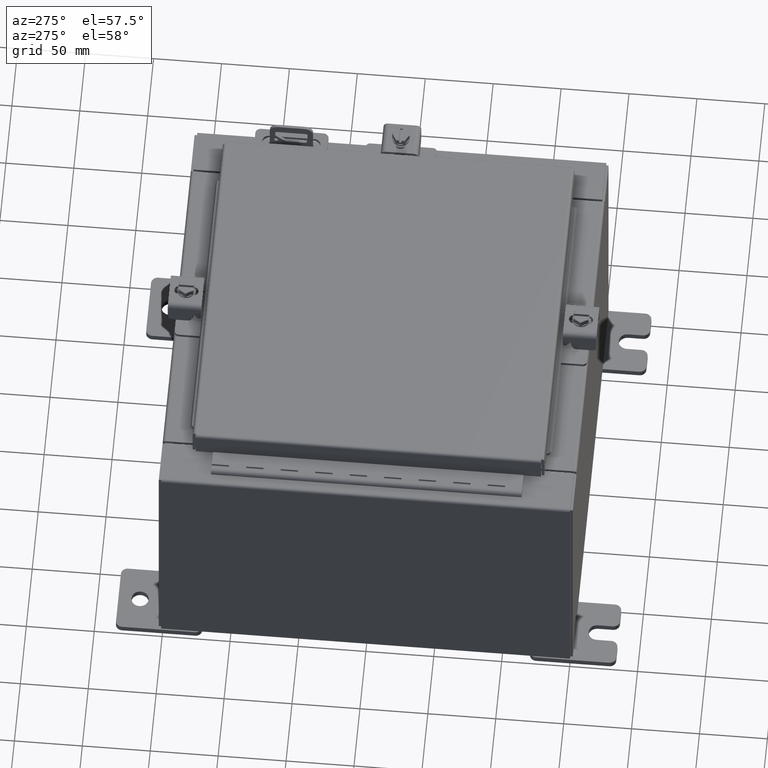
[diagram: clean part render]
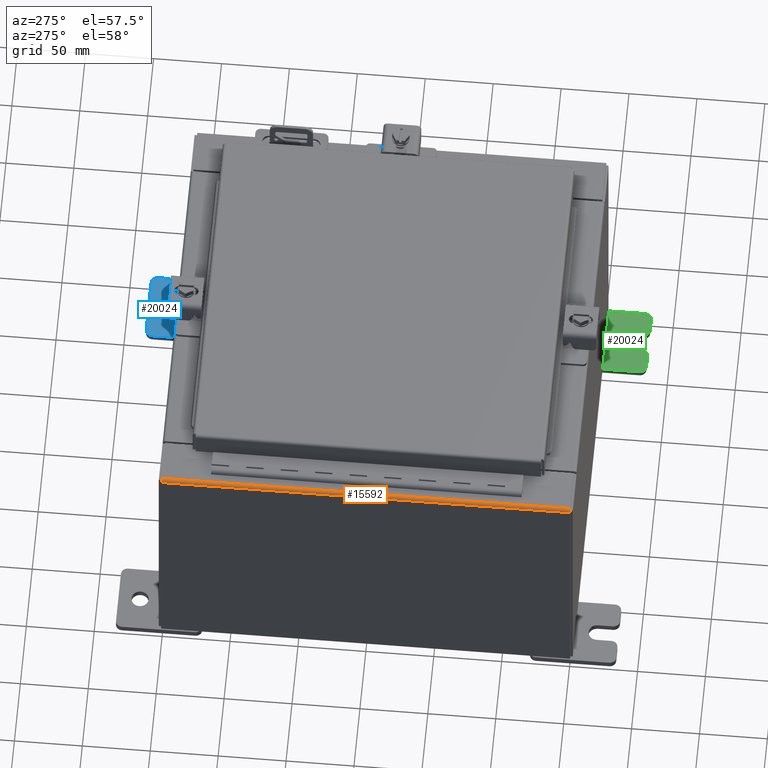
[diagram: same view with three faces highlighted in distinct colors, each labeled with its STEP entity id]
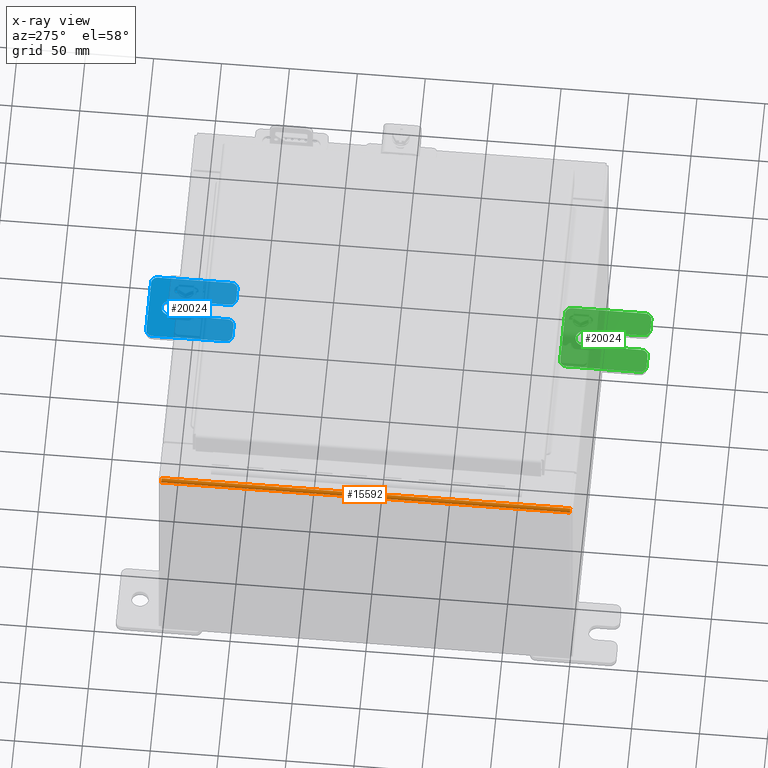
[diagram: x-ray of the same camera — body ghosted, the three highlighted faces saturated]
A machine part, auxiliary view with three faces highlighted in distinct colors.
The next image is the same camera in x-ray (body ghosted, the three faces saturated) — at least one of them is partly hidden behind the body in this view.
Their STEP definitions:

[orange] entity #15592 — the highlighted cylindrical surface (edge-blend (fillet) strip) has radius 2.2276 mm, axis along (-0, -1, -0).
#69 = AXIS2_PLACEMENT_3D ( 'NONE', #8553, #21232, #10394 ) ;
#216 = DIRECTION ( 'NONE',  ( 0.0000000000000000000, 1.000000000000000000, 0.0000000000000000000 ) ) ;
#628 = LINE ( 'NONE', #20054, #13836 ) ;
#974 = CARTESIAN_POINT ( 'NONE',  ( -5.912300000000026800, -5.925299999999995600, 7.925300000000000000 ) ) ;
#1268 = EDGE_CURVE ( 'NONE', #5473, #1797, #628, .T. ) ;
#1797 = VERTEX_POINT ( 'NONE', #10843 ) ;
#2238 = ORIENTED_EDGE ( 'NONE', *, *, #6460, .F. ) ;
#2989 = CIRCLE ( 'NONE', #69, 0.08770000000000026400 ) ;
#3129 = CARTESIAN_POINT ( 'NONE',  ( -5.912300000000026800, 5.925299999999999100, 7.925300000000000000 ) ) ;
#3754 = CARTESIAN_POINT ( 'NONE',  ( -5.912300000000026800, -5.925299999999999100, 7.837599999999999200 ) ) ;
#4167 = FACE_OUTER_BOUND ( 'NONE', #5408, .T. ) ;
#5408 = EDGE_LOOP ( 'NONE', ( #11499, #10236, #21797, #2238 ) ) ;
#5473 = VERTEX_POINT ( 'NONE', #22012 ) ;
#6460 = EDGE_CURVE ( 'NONE', #1797, #10563, #2989, .T. ) ;
#8553 = CARTESIAN_POINT ( 'NONE',  ( -5.912300000000026800, 5.925299999999999100, 7.837599999999999200 ) ) ;
#8840 = CARTESIAN_POINT ( 'NONE',  ( -5.912300000000026800, -5.925299999999995600, 7.837599999999999200 ) ) ;
#10236 = ORIENTED_EDGE ( 'NONE', *, *, #11080, .F. ) ;
#10394 = DIRECTION ( 'NONE',  ( 0.0000000000000000000, 0.0000000000000000000, -1.000000000000000000 ) ) ;
#10563 = VERTEX_POINT ( 'NONE', #3129 ) ;
#10671 = DIRECTION ( 'NONE',  ( 0.0000000000000000000, 0.0000000000000000000, -1.000000000000000000 ) ) ;
#10843 = CARTESIAN_POINT ( 'NONE',  ( -6.000000000000026600, 5.925299999999999100, 7.837599999999999200 ) ) ;
#11020 = VECTOR ( 'NONE', #21230, 39.37007874015748100 ) ;
#11080 = EDGE_CURVE ( 'NONE', #18342, #5473, #19603, .T. ) ;
#11499 = ORIENTED_EDGE ( 'NONE', *, *, #1268, .F. ) ;
#12608 = CYLINDRICAL_SURFACE ( 'NONE', #15804, 0.08770000000000026400 ) ;
#13836 = VECTOR ( 'NONE', #216, 39.37007874015748100 ) ;
#14578 = DIRECTION ( 'NONE',  ( -1.245996804407870000E-014, 0.0000000000000000000, 1.000000000000000000 ) ) ;
#15592 = ADVANCED_FACE ( 'NONE', ( #4167 ), #12608, .T. ) ;
#15804 = AXIS2_PLACEMENT_3D ( 'NONE', #3754, #16407, #14578 ) ;
#16407 = DIRECTION ( 'NONE',  ( -0.0000000000000000000, -1.000000000000000000, -0.0000000000000000000 ) ) ;
#17206 = EDGE_CURVE ( 'NONE', #18342, #10563, #20637, .T. ) ;
#17583 = CARTESIAN_POINT ( 'NONE',  ( -5.912300000000026800, 5.925299999999999100, 7.925300000000000000 ) ) ;
#18342 = VERTEX_POINT ( 'NONE', #974 ) ;
#19603 = CIRCLE ( 'NONE', #19735, 0.08770000000000026400 ) ;
#19735 = AXIS2_PLACEMENT_3D ( 'NONE', #8840, #21507, #10671 ) ;
#20054 = CARTESIAN_POINT ( 'NONE',  ( -6.000000000000026600, -5.925299999999999100, 7.837599999999999200 ) ) ;
#20637 = LINE ( 'NONE', #17583, #11020 ) ;
#21230 = DIRECTION ( 'NONE',  ( -0.0000000000000000000, 1.000000000000000000, -0.0000000000000000000 ) ) ;
#21232 = DIRECTION ( 'NONE',  ( 0.0000000000000000000, 1.000000000000000000, 0.0000000000000000000 ) ) ;
#21507 = DIRECTION ( 'NONE',  ( -0.0000000000000000000, -1.000000000000000000, -0.0000000000000000000 ) ) ;
#21797 = ORIENTED_EDGE ( 'NONE', *, *, #17206, .T. ) ;
#22012 = CARTESIAN_POINT ( 'NONE',  ( -6.000000000000026600, -5.925299999999995600, 7.837599999999999200 ) ) ;

[blue] entity #20024 — the highlighted planar face has unit normal (0, 0, 1).
#12 = EDGE_LOOP ( 'NONE', ( #15876, #14520 ) ) ;
#305 = CARTESIAN_POINT ( 'NONE',  ( 0.0000000000000000000, 1.059999999999996500, 0.9999999999999953400 ) ) ;
#368 = DIRECTION ( 'NONE',  ( 0.0000000000000000000, 0.0000000000000000000, -1.000000000000000000 ) ) ;
#656 = DIRECTION ( 'NONE',  ( 1.000000000000000000, 0.0000000000000000000, -0.0000000000000000000 ) ) ;
#1143 = CARTESIAN_POINT ( 'NONE',  ( 0.0000000000000000000, -1.250000000000002200, 0.9999999999999992200 ) ) ;
#1504 = AXIS2_PLACEMENT_3D ( 'NONE', #22040, #11196, #368 ) ;
#1907 = DIRECTION ( 'NONE',  ( -1.000000000000000000, 6.523827964459549700E-016, 5.163192708025532000E-017 ) ) ;
#2063 = DIRECTION ( 'NONE',  ( 0.0000000000000000000, -1.639108796198553600E-015, -1.000000000000000000 ) ) ;
#2119 = FACE_OUTER_BOUND ( 'NONE', #22215, .T. ) ;
#2280 = CARTESIAN_POINT ( 'NONE',  ( 1.928684683526972300E-016, -1.060000000000002100, 0.2500000000000005000 ) ) ;
#2347 = AXIS2_PLACEMENT_3D ( 'NONE', #13286, #2495, #15117 ) ;
#2495 = DIRECTION ( 'NONE',  ( 1.000000000000000000, -0.0000000000000000000, -5.163192708025532000E-017 ) ) ;
#2783 = AXIS2_PLACEMENT_3D ( 'NONE', #4061, #16705, #5897 ) ;
#2816 = EDGE_CURVE ( 'NONE', #12637, #7924, #9660, .T. ) ;
#3199 = LINE ( 'NONE', #8523, #21895 ) ;
#3276 = VERTEX_POINT ( 'NONE', #5147 ) ;
#3283 = AXIS2_PLACEMENT_3D ( 'NONE', #19241, #8398, #21064 ) ;
#3417 = ORIENTED_EDGE ( 'NONE', *, *, #8462, .T. ) ;
#3500 = ORIENTED_EDGE ( 'NONE', *, *, #8357, .T. ) ;
#3538 = VECTOR ( 'NONE', #11509, 39.37007874015748100 ) ;
#3866 = EDGE_CURVE ( 'NONE', #21103, #7865, #4253, .T. ) ;
#3917 = CIRCLE ( 'NONE', #3283, 0.1900000000000011100 ) ;
#4019 = AXIS2_PLACEMENT_3D ( 'NONE', #19695, #8852, #21522 ) ;
#4061 = CARTESIAN_POINT ( 'NONE',  ( 4.039428427013647300E-016, 0.6249999999999992200, -9.783840404509077400E-018 ) ) ;
#4225 = PLANE ( 'NONE',  #14187 ) ;
#4253 = CIRCLE ( 'NONE', #22323, 0.1900000000000011100 ) ;
#4599 = EDGE_CURVE ( 'NONE', #6870, #3276, #19486, .T. ) ;
#4742 = ORIENTED_EDGE ( 'NONE', *, *, #10960, .T. ) ;
#5147 = CARTESIAN_POINT ( 'NONE',  ( 4.168508244714285900E-016, 0.6249999999999992200, 0.2499999999999999200 ) ) ;
#5223 = EDGE_CURVE ( 'NONE', #22530, #20674, #7591, .T. ) ;
#5267 = CIRCLE ( 'NONE', #4019, 0.1900000000000011400 ) ;
#5510 = VECTOR ( 'NONE', #15352, 39.37007874015748100 ) ;
#5671 = CARTESIAN_POINT ( 'NONE',  ( 1.928684683526964400E-016, -1.060000000000003400, -0.2499999999999994400 ) ) ;
#5897 = DIRECTION ( 'NONE',  ( -5.163192708025533800E-017, 0.0000000000000000000, -1.000000000000000000 ) ) ;
#6054 = DIRECTION ( 'NONE',  ( 1.000000000000000000, 0.0000000000000000000, -0.0000000000000000000 ) ) ;
#6177 = ORIENTED_EDGE ( 'NONE', *, *, #18038, .T. ) ;
#6870 = VERTEX_POINT ( 'NONE', #16285 ) ;
#6990 = DIRECTION ( 'NONE',  ( 0.0000000000000000000, 1.639108796198553600E-015, 1.000000000000000000 ) ) ;
#7319 = DIRECTION ( 'NONE',  ( 1.000000000000000000, 0.0000000000000000000, -0.0000000000000000000 ) ) ;
#7432 = VERTEX_POINT ( 'NONE', #23359 ) ;
#7591 = LINE ( 'NONE', #19615, #21449 ) ;
#7737 = EDGE_CURVE ( 'NONE', #14711, #17662, #9499, .T. ) ;
#7865 = VERTEX_POINT ( 'NONE', #17121 ) ;
#7924 = VERTEX_POINT ( 'NONE', #10144 ) ;
#7959 = EDGE_CURVE ( 'NONE', #16753, #7432, #18255, .T. ) ;
#8021 = VERTEX_POINT ( 'NONE', #21221 ) ;
#8037 = CIRCLE ( 'NONE', #22698, 0.1900000000000011100 ) ;
#8169 = CARTESIAN_POINT ( 'NONE',  ( 0.0000000000000000000, -1.250000000000005600, -1.000000000000006200 ) ) ;
#8357 = EDGE_CURVE ( 'NONE', #7924, #8021, #10875, .T. ) ;
#8398 = DIRECTION ( 'NONE',  ( 1.000000000000000000, 0.0000000000000000000, -0.0000000000000000000 ) ) ;
#8459 = CARTESIAN_POINT ( 'NONE',  ( 0.0000000000000000000, 1.059999999999993600, -0.8100000000000089400 ) ) ;
#8462 = EDGE_CURVE ( 'NONE', #8021, #22530, #8037, .T. ) ;
#8523 = CARTESIAN_POINT ( 'NONE',  ( 4.780733988912460100E-016, -0.6249999999999993300, -0.2499999999999993900 ) ) ;
#8852 = DIRECTION ( 'NONE',  ( 1.000000000000000000, 0.0000000000000000000, -0.0000000000000000000 ) ) ;
#9499 = LINE ( 'NONE', #20541, #3538 ) ;
#9560 = VECTOR ( 'NONE', #2063, 39.37007874015748100 ) ;
#9660 = CIRCLE ( 'NONE', #1504, 0.1900000000000011100 ) ;
#9910 = ORIENTED_EDGE ( 'NONE', *, *, #3866, .T. ) ;
#10144 = CARTESIAN_POINT ( 'NONE',  ( 0.0000000000000000000, -1.060000000000004500, -1.000000000000006400 ) ) ;
#10285 = DIRECTION ( 'NONE',  ( 0.0000000000000000000, 0.0000000000000000000, -1.000000000000000000 ) ) ;
#10376 = ORIENTED_EDGE ( 'NONE', *, *, #11054, .T. ) ;
#10455 = CIRCLE ( 'NONE', #2347, 0.2499999999999999200 ) ;
#10875 = LINE ( 'NONE', #8169, #5510 ) ;
#10960 = EDGE_CURVE ( 'NONE', #12478, #21103, #3199, .T. ) ;
#10982 = CARTESIAN_POINT ( 'NONE',  ( 0.0000000000000000000, -1.250000000000002400, 0.8099999999999980500 ) ) ;
#11054 = EDGE_CURVE ( 'NONE', #16839, #11953, #20187, .T. ) ;
#11082 = CARTESIAN_POINT ( 'NONE',  ( 0.0000000000000000000, -1.250000000000002200, 0.9999999999999992200 ) ) ;
#11196 = DIRECTION ( 'NONE',  ( 1.000000000000000000, 0.0000000000000000000, -0.0000000000000000000 ) ) ;
#11207 = CARTESIAN_POINT ( 'NONE',  ( 0.0000000000000000000, -1.060000000000001200, 0.9999999999999988900 ) ) ;
#11509 = DIRECTION ( 'NONE',  ( 6.556435184794182400E-016, 1.000000000000000000, 0.0000000000000000000 ) ) ;
#11685 = ORIENTED_EDGE ( 'NONE', *, *, #5223, .T. ) ;
#11953 = VERTEX_POINT ( 'NONE', #11207 ) ;
#12023 = DIRECTION ( 'NONE',  ( 0.0000000000000000000, -1.639108796198553600E-015, -1.000000000000000000 ) ) ;
#12313 = DIRECTION ( 'NONE',  ( 0.0000000000000000000, -1.000000000000000000, 1.639108796198558100E-015 ) ) ;
#12478 = VERTEX_POINT ( 'NONE', #20882 ) ;
#12637 = VERTEX_POINT ( 'NONE', #23140 ) ;
#12719 = CARTESIAN_POINT ( 'NONE',  ( 4.780733988912460100E-016, -0.6249999999999993300, 5.858939755051854500E-017 ) ) ;
#12856 = ORIENTED_EDGE ( 'NONE', *, *, #21696, .T. ) ;
#13275 = DIRECTION ( 'NONE',  ( -0.0000000000000000000, 0.0000000000000000000, -1.000000000000000000 ) ) ;
#13286 = CARTESIAN_POINT ( 'NONE',  ( 4.039428427013647300E-016, 0.6249999999999992200, -9.783840404509077400E-018 ) ) ;
#13593 = AXIS2_PLACEMENT_3D ( 'NONE', #16883, #6054, #18698 ) ;
#14187 = AXIS2_PLACEMENT_3D ( 'NONE', #20513, #656, #13275 ) ;
#14520 = ORIENTED_EDGE ( 'NONE', *, *, #23089, .F. ) ;
#14546 = DIRECTION ( 'NONE',  ( -6.523827964459551700E-016, -1.000000000000000000, 0.0000000000000000000 ) ) ;
#14711 = VERTEX_POINT ( 'NONE', #2280 ) ;
#14853 = CARTESIAN_POINT ( 'NONE',  ( 0.0000000000000000000, 1.249999999999997300, 0.8099999999999935000 ) ) ;
#14927 = EDGE_CURVE ( 'NONE', #11953, #16753, #3917, .T. ) ;
#15117 = DIRECTION ( 'NONE',  ( -5.163192708025533800E-017, 0.0000000000000000000, -1.000000000000000000 ) ) ;
#15138 = AXIS2_PLACEMENT_3D ( 'NONE', #12719, #1907, #14546 ) ;
#15352 = DIRECTION ( 'NONE',  ( 0.0000000000000000000, 1.000000000000000000, -1.639108796198558100E-015 ) ) ;
#15356 = VECTOR ( 'NONE', #12313, 39.37007874015748100 ) ;
#15623 = ORIENTED_EDGE ( 'NONE', *, *, #14927, .T. ) ;
#15876 = ORIENTED_EDGE ( 'NONE', *, *, #4599, .F. ) ;
#16045 = EDGE_CURVE ( 'NONE', #7432, #14711, #5267, .T. ) ;
#16285 = CARTESIAN_POINT ( 'NONE',  ( 3.910348609313009100E-016, 0.6249999999999992200, -0.2499999999999999200 ) ) ;
#16300 = ORIENTED_EDGE ( 'NONE', *, *, #7959, .T. ) ;
#16336 = ORIENTED_EDGE ( 'NONE', *, *, #21229, .T. ) ;
#16705 = DIRECTION ( 'NONE',  ( 1.000000000000000000, -0.0000000000000000000, -5.163192708025532000E-017 ) ) ;
#16753 = VERTEX_POINT ( 'NONE', #10982 ) ;
#16839 = VERTEX_POINT ( 'NONE', #305 ) ;
#16883 = CARTESIAN_POINT ( 'NONE',  ( 0.0000000000000000000, 1.059999999999996300, 0.8099999999999938400 ) ) ;
#17121 = CARTESIAN_POINT ( 'NONE',  ( 0.0000000000000000000, -1.250000000000004700, -0.4400000000000002200 ) ) ;
#17328 = CIRCLE ( 'NONE', #13593, 0.1900000000000011100 ) ;
#17662 = VERTEX_POINT ( 'NONE', #20897 ) ;
#17787 = CARTESIAN_POINT ( 'NONE',  ( 0.0000000000000000000, 1.249999999999997600, 0.9999999999999951200 ) ) ;
#17873 = CIRCLE ( 'NONE', #15138, 0.2499999999999999200 ) ;
#18038 = EDGE_CURVE ( 'NONE', #7865, #12637, #23401, .T. ) ;
#18130 = CARTESIAN_POINT ( 'NONE',  ( 0.0000000000000000000, -1.060000000000003400, -0.4400000000000005000 ) ) ;
#18255 = LINE ( 'NONE', #1143, #22490 ) ;
#18698 = DIRECTION ( 'NONE',  ( 0.0000000000000000000, 0.0000000000000000000, -1.000000000000000000 ) ) ;
#19241 = CARTESIAN_POINT ( 'NONE',  ( 0.0000000000000000000, -1.060000000000001600, 0.8099999999999978300 ) ) ;
#19366 = DIRECTION ( 'NONE',  ( -6.556435184794182400E-016, -1.000000000000000000, -1.639108796198545600E-016 ) ) ;
#19486 = CIRCLE ( 'NONE', #2783, 0.2499999999999999200 ) ;
#19615 = CARTESIAN_POINT ( 'NONE',  ( 0.0000000000000000000, 1.249999999999994200, -1.000000000000010400 ) ) ;
#19695 = CARTESIAN_POINT ( 'NONE',  ( 0.0000000000000000000, -1.060000000000002100, 0.4400000000000016700 ) ) ;
#19950 = DIRECTION ( 'NONE',  ( 0.0000000000000000000, 0.0000000000000000000, -1.000000000000000000 ) ) ;
#20024 = ADVANCED_FACE ( 'NONE', ( #21353, #2119 ), #4225, .T. ) ;
#20187 = LINE ( 'NONE', #17787, #15356 ) ;
#20513 = CARTESIAN_POINT ( 'NONE',  ( 0.0000000000000000000, 0.0000000000000000000, 0.0000000000000000000 ) ) ;
#20530 = ORIENTED_EDGE ( 'NONE', *, *, #16045, .T. ) ;
#20541 = CARTESIAN_POINT ( 'NONE',  ( 6.829619984160658000E-017, -1.250000000000003800, 0.2500000000000005000 ) ) ;
#20674 = VERTEX_POINT ( 'NONE', #14853 ) ;
#20776 = CARTESIAN_POINT ( 'NONE',  ( 0.0000000000000000000, 1.249999999999994700, -0.8100000000000092700 ) ) ;
#20882 = CARTESIAN_POINT ( 'NONE',  ( 4.780733988912460100E-016, -0.6249999999999993300, -0.2499999999999998600 ) ) ;
#20897 = CARTESIAN_POINT ( 'NONE',  ( 0.0000000000000000000, -0.6249999999999992200, 0.2500000000000005000 ) ) ;
#21028 = ORIENTED_EDGE ( 'NONE', *, *, #7737, .T. ) ;
#21064 = DIRECTION ( 'NONE',  ( 0.0000000000000000000, 0.0000000000000000000, -1.000000000000000000 ) ) ;
#21103 = VERTEX_POINT ( 'NONE', #5671 ) ;
#21134 = DIRECTION ( 'NONE',  ( 1.000000000000000000, 0.0000000000000000000, -0.0000000000000000000 ) ) ;
#21221 = CARTESIAN_POINT ( 'NONE',  ( 0.0000000000000000000, 1.059999999999993400, -1.000000000000010000 ) ) ;
#21229 = EDGE_CURVE ( 'NONE', #20674, #16839, #17328, .T. ) ;
#21353 = FACE_BOUND ( 'NONE', #12, .T. ) ;
#21449 = VECTOR ( 'NONE', #6990, 39.37007874015748100 ) ;
#21522 = DIRECTION ( 'NONE',  ( 0.0000000000000000000, 0.0000000000000000000, -1.000000000000000000 ) ) ;
#21696 = EDGE_CURVE ( 'NONE', #17662, #12478, #17873, .T. ) ;
#21786 = ORIENTED_EDGE ( 'NONE', *, *, #2816, .T. ) ;
#21895 = VECTOR ( 'NONE', #19366, 39.37007874015748100 ) ;
#22040 = CARTESIAN_POINT ( 'NONE',  ( 0.0000000000000000000, -1.060000000000004100, -0.8100000000000050500 ) ) ;
#22215 = EDGE_LOOP ( 'NONE', ( #10376, #15623, #16300, #20530, #21028, #12856, #4742, #9910, #6177, #21786, #3500, #3417, #11685, #16336 ) ) ;
#22323 = AXIS2_PLACEMENT_3D ( 'NONE', #18130, #7319, #19950 ) ;
#22490 = VECTOR ( 'NONE', #12023, 39.37007874015748100 ) ;
#22530 = VERTEX_POINT ( 'NONE', #20776 ) ;
#22698 = AXIS2_PLACEMENT_3D ( 'NONE', #8459, #21134, #10285 ) ;
#23089 = EDGE_CURVE ( 'NONE', #3276, #6870, #10455, .T. ) ;
#23140 = CARTESIAN_POINT ( 'NONE',  ( 0.0000000000000000000, -1.250000000000005300, -0.8100000000000047200 ) ) ;
#23359 = CARTESIAN_POINT ( 'NONE',  ( 0.0000000000000000000, -1.250000000000003100, 0.4400000000000020000 ) ) ;
#23401 = LINE ( 'NONE', #11082, #9560 ) ;

[green] entity #20024 — the highlighted planar face has unit normal (0, 0, 1).
#12 = EDGE_LOOP ( 'NONE', ( #15876, #14520 ) ) ;
#305 = CARTESIAN_POINT ( 'NONE',  ( 0.0000000000000000000, 1.059999999999996500, 0.9999999999999953400 ) ) ;
#368 = DIRECTION ( 'NONE',  ( 0.0000000000000000000, 0.0000000000000000000, -1.000000000000000000 ) ) ;
#656 = DIRECTION ( 'NONE',  ( 1.000000000000000000, 0.0000000000000000000, -0.0000000000000000000 ) ) ;
#1143 = CARTESIAN_POINT ( 'NONE',  ( 0.0000000000000000000, -1.250000000000002200, 0.9999999999999992200 ) ) ;
#1504 = AXIS2_PLACEMENT_3D ( 'NONE', #22040, #11196, #368 ) ;
#1907 = DIRECTION ( 'NONE',  ( -1.000000000000000000, 6.523827964459549700E-016, 5.163192708025532000E-017 ) ) ;
#2063 = DIRECTION ( 'NONE',  ( 0.0000000000000000000, -1.639108796198553600E-015, -1.000000000000000000 ) ) ;
#2119 = FACE_OUTER_BOUND ( 'NONE', #22215, .T. ) ;
#2280 = CARTESIAN_POINT ( 'NONE',  ( 1.928684683526972300E-016, -1.060000000000002100, 0.2500000000000005000 ) ) ;
#2347 = AXIS2_PLACEMENT_3D ( 'NONE', #13286, #2495, #15117 ) ;
#2495 = DIRECTION ( 'NONE',  ( 1.000000000000000000, -0.0000000000000000000, -5.163192708025532000E-017 ) ) ;
#2783 = AXIS2_PLACEMENT_3D ( 'NONE', #4061, #16705, #5897 ) ;
#2816 = EDGE_CURVE ( 'NONE', #12637, #7924, #9660, .T. ) ;
#3199 = LINE ( 'NONE', #8523, #21895 ) ;
#3276 = VERTEX_POINT ( 'NONE', #5147 ) ;
#3283 = AXIS2_PLACEMENT_3D ( 'NONE', #19241, #8398, #21064 ) ;
#3417 = ORIENTED_EDGE ( 'NONE', *, *, #8462, .T. ) ;
#3500 = ORIENTED_EDGE ( 'NONE', *, *, #8357, .T. ) ;
#3538 = VECTOR ( 'NONE', #11509, 39.37007874015748100 ) ;
#3866 = EDGE_CURVE ( 'NONE', #21103, #7865, #4253, .T. ) ;
#3917 = CIRCLE ( 'NONE', #3283, 0.1900000000000011100 ) ;
#4019 = AXIS2_PLACEMENT_3D ( 'NONE', #19695, #8852, #21522 ) ;
#4061 = CARTESIAN_POINT ( 'NONE',  ( 4.039428427013647300E-016, 0.6249999999999992200, -9.783840404509077400E-018 ) ) ;
#4225 = PLANE ( 'NONE',  #14187 ) ;
#4253 = CIRCLE ( 'NONE', #22323, 0.1900000000000011100 ) ;
#4599 = EDGE_CURVE ( 'NONE', #6870, #3276, #19486, .T. ) ;
#4742 = ORIENTED_EDGE ( 'NONE', *, *, #10960, .T. ) ;
#5147 = CARTESIAN_POINT ( 'NONE',  ( 4.168508244714285900E-016, 0.6249999999999992200, 0.2499999999999999200 ) ) ;
#5223 = EDGE_CURVE ( 'NONE', #22530, #20674, #7591, .T. ) ;
#5267 = CIRCLE ( 'NONE', #4019, 0.1900000000000011400 ) ;
#5510 = VECTOR ( 'NONE', #15352, 39.37007874015748100 ) ;
#5671 = CARTESIAN_POINT ( 'NONE',  ( 1.928684683526964400E-016, -1.060000000000003400, -0.2499999999999994400 ) ) ;
#5897 = DIRECTION ( 'NONE',  ( -5.163192708025533800E-017, 0.0000000000000000000, -1.000000000000000000 ) ) ;
#6054 = DIRECTION ( 'NONE',  ( 1.000000000000000000, 0.0000000000000000000, -0.0000000000000000000 ) ) ;
#6177 = ORIENTED_EDGE ( 'NONE', *, *, #18038, .T. ) ;
#6870 = VERTEX_POINT ( 'NONE', #16285 ) ;
#6990 = DIRECTION ( 'NONE',  ( 0.0000000000000000000, 1.639108796198553600E-015, 1.000000000000000000 ) ) ;
#7319 = DIRECTION ( 'NONE',  ( 1.000000000000000000, 0.0000000000000000000, -0.0000000000000000000 ) ) ;
#7432 = VERTEX_POINT ( 'NONE', #23359 ) ;
#7591 = LINE ( 'NONE', #19615, #21449 ) ;
#7737 = EDGE_CURVE ( 'NONE', #14711, #17662, #9499, .T. ) ;
#7865 = VERTEX_POINT ( 'NONE', #17121 ) ;
#7924 = VERTEX_POINT ( 'NONE', #10144 ) ;
#7959 = EDGE_CURVE ( 'NONE', #16753, #7432, #18255, .T. ) ;
#8021 = VERTEX_POINT ( 'NONE', #21221 ) ;
#8037 = CIRCLE ( 'NONE', #22698, 0.1900000000000011100 ) ;
#8169 = CARTESIAN_POINT ( 'NONE',  ( 0.0000000000000000000, -1.250000000000005600, -1.000000000000006200 ) ) ;
#8357 = EDGE_CURVE ( 'NONE', #7924, #8021, #10875, .T. ) ;
#8398 = DIRECTION ( 'NONE',  ( 1.000000000000000000, 0.0000000000000000000, -0.0000000000000000000 ) ) ;
#8459 = CARTESIAN_POINT ( 'NONE',  ( 0.0000000000000000000, 1.059999999999993600, -0.8100000000000089400 ) ) ;
#8462 = EDGE_CURVE ( 'NONE', #8021, #22530, #8037, .T. ) ;
#8523 = CARTESIAN_POINT ( 'NONE',  ( 4.780733988912460100E-016, -0.6249999999999993300, -0.2499999999999993900 ) ) ;
#8852 = DIRECTION ( 'NONE',  ( 1.000000000000000000, 0.0000000000000000000, -0.0000000000000000000 ) ) ;
#9499 = LINE ( 'NONE', #20541, #3538 ) ;
#9560 = VECTOR ( 'NONE', #2063, 39.37007874015748100 ) ;
#9660 = CIRCLE ( 'NONE', #1504, 0.1900000000000011100 ) ;
#9910 = ORIENTED_EDGE ( 'NONE', *, *, #3866, .T. ) ;
#10144 = CARTESIAN_POINT ( 'NONE',  ( 0.0000000000000000000, -1.060000000000004500, -1.000000000000006400 ) ) ;
#10285 = DIRECTION ( 'NONE',  ( 0.0000000000000000000, 0.0000000000000000000, -1.000000000000000000 ) ) ;
#10376 = ORIENTED_EDGE ( 'NONE', *, *, #11054, .T. ) ;
#10455 = CIRCLE ( 'NONE', #2347, 0.2499999999999999200 ) ;
#10875 = LINE ( 'NONE', #8169, #5510 ) ;
#10960 = EDGE_CURVE ( 'NONE', #12478, #21103, #3199, .T. ) ;
#10982 = CARTESIAN_POINT ( 'NONE',  ( 0.0000000000000000000, -1.250000000000002400, 0.8099999999999980500 ) ) ;
#11054 = EDGE_CURVE ( 'NONE', #16839, #11953, #20187, .T. ) ;
#11082 = CARTESIAN_POINT ( 'NONE',  ( 0.0000000000000000000, -1.250000000000002200, 0.9999999999999992200 ) ) ;
#11196 = DIRECTION ( 'NONE',  ( 1.000000000000000000, 0.0000000000000000000, -0.0000000000000000000 ) ) ;
#11207 = CARTESIAN_POINT ( 'NONE',  ( 0.0000000000000000000, -1.060000000000001200, 0.9999999999999988900 ) ) ;
#11509 = DIRECTION ( 'NONE',  ( 6.556435184794182400E-016, 1.000000000000000000, 0.0000000000000000000 ) ) ;
#11685 = ORIENTED_EDGE ( 'NONE', *, *, #5223, .T. ) ;
#11953 = VERTEX_POINT ( 'NONE', #11207 ) ;
#12023 = DIRECTION ( 'NONE',  ( 0.0000000000000000000, -1.639108796198553600E-015, -1.000000000000000000 ) ) ;
#12313 = DIRECTION ( 'NONE',  ( 0.0000000000000000000, -1.000000000000000000, 1.639108796198558100E-015 ) ) ;
#12478 = VERTEX_POINT ( 'NONE', #20882 ) ;
#12637 = VERTEX_POINT ( 'NONE', #23140 ) ;
#12719 = CARTESIAN_POINT ( 'NONE',  ( 4.780733988912460100E-016, -0.6249999999999993300, 5.858939755051854500E-017 ) ) ;
#12856 = ORIENTED_EDGE ( 'NONE', *, *, #21696, .T. ) ;
#13275 = DIRECTION ( 'NONE',  ( -0.0000000000000000000, 0.0000000000000000000, -1.000000000000000000 ) ) ;
#13286 = CARTESIAN_POINT ( 'NONE',  ( 4.039428427013647300E-016, 0.6249999999999992200, -9.783840404509077400E-018 ) ) ;
#13593 = AXIS2_PLACEMENT_3D ( 'NONE', #16883, #6054, #18698 ) ;
#14187 = AXIS2_PLACEMENT_3D ( 'NONE', #20513, #656, #13275 ) ;
#14520 = ORIENTED_EDGE ( 'NONE', *, *, #23089, .F. ) ;
#14546 = DIRECTION ( 'NONE',  ( -6.523827964459551700E-016, -1.000000000000000000, 0.0000000000000000000 ) ) ;
#14711 = VERTEX_POINT ( 'NONE', #2280 ) ;
#14853 = CARTESIAN_POINT ( 'NONE',  ( 0.0000000000000000000, 1.249999999999997300, 0.8099999999999935000 ) ) ;
#14927 = EDGE_CURVE ( 'NONE', #11953, #16753, #3917, .T. ) ;
#15117 = DIRECTION ( 'NONE',  ( -5.163192708025533800E-017, 0.0000000000000000000, -1.000000000000000000 ) ) ;
#15138 = AXIS2_PLACEMENT_3D ( 'NONE', #12719, #1907, #14546 ) ;
#15352 = DIRECTION ( 'NONE',  ( 0.0000000000000000000, 1.000000000000000000, -1.639108796198558100E-015 ) ) ;
#15356 = VECTOR ( 'NONE', #12313, 39.37007874015748100 ) ;
#15623 = ORIENTED_EDGE ( 'NONE', *, *, #14927, .T. ) ;
#15876 = ORIENTED_EDGE ( 'NONE', *, *, #4599, .F. ) ;
#16045 = EDGE_CURVE ( 'NONE', #7432, #14711, #5267, .T. ) ;
#16285 = CARTESIAN_POINT ( 'NONE',  ( 3.910348609313009100E-016, 0.6249999999999992200, -0.2499999999999999200 ) ) ;
#16300 = ORIENTED_EDGE ( 'NONE', *, *, #7959, .T. ) ;
#16336 = ORIENTED_EDGE ( 'NONE', *, *, #21229, .T. ) ;
#16705 = DIRECTION ( 'NONE',  ( 1.000000000000000000, -0.0000000000000000000, -5.163192708025532000E-017 ) ) ;
#16753 = VERTEX_POINT ( 'NONE', #10982 ) ;
#16839 = VERTEX_POINT ( 'NONE', #305 ) ;
#16883 = CARTESIAN_POINT ( 'NONE',  ( 0.0000000000000000000, 1.059999999999996300, 0.8099999999999938400 ) ) ;
#17121 = CARTESIAN_POINT ( 'NONE',  ( 0.0000000000000000000, -1.250000000000004700, -0.4400000000000002200 ) ) ;
#17328 = CIRCLE ( 'NONE', #13593, 0.1900000000000011100 ) ;
#17662 = VERTEX_POINT ( 'NONE', #20897 ) ;
#17787 = CARTESIAN_POINT ( 'NONE',  ( 0.0000000000000000000, 1.249999999999997600, 0.9999999999999951200 ) ) ;
#17873 = CIRCLE ( 'NONE', #15138, 0.2499999999999999200 ) ;
#18038 = EDGE_CURVE ( 'NONE', #7865, #12637, #23401, .T. ) ;
#18130 = CARTESIAN_POINT ( 'NONE',  ( 0.0000000000000000000, -1.060000000000003400, -0.4400000000000005000 ) ) ;
#18255 = LINE ( 'NONE', #1143, #22490 ) ;
#18698 = DIRECTION ( 'NONE',  ( 0.0000000000000000000, 0.0000000000000000000, -1.000000000000000000 ) ) ;
#19241 = CARTESIAN_POINT ( 'NONE',  ( 0.0000000000000000000, -1.060000000000001600, 0.8099999999999978300 ) ) ;
#19366 = DIRECTION ( 'NONE',  ( -6.556435184794182400E-016, -1.000000000000000000, -1.639108796198545600E-016 ) ) ;
#19486 = CIRCLE ( 'NONE', #2783, 0.2499999999999999200 ) ;
#19615 = CARTESIAN_POINT ( 'NONE',  ( 0.0000000000000000000, 1.249999999999994200, -1.000000000000010400 ) ) ;
#19695 = CARTESIAN_POINT ( 'NONE',  ( 0.0000000000000000000, -1.060000000000002100, 0.4400000000000016700 ) ) ;
#19950 = DIRECTION ( 'NONE',  ( 0.0000000000000000000, 0.0000000000000000000, -1.000000000000000000 ) ) ;
#20024 = ADVANCED_FACE ( 'NONE', ( #21353, #2119 ), #4225, .T. ) ;
#20187 = LINE ( 'NONE', #17787, #15356 ) ;
#20513 = CARTESIAN_POINT ( 'NONE',  ( 0.0000000000000000000, 0.0000000000000000000, 0.0000000000000000000 ) ) ;
#20530 = ORIENTED_EDGE ( 'NONE', *, *, #16045, .T. ) ;
#20541 = CARTESIAN_POINT ( 'NONE',  ( 6.829619984160658000E-017, -1.250000000000003800, 0.2500000000000005000 ) ) ;
#20674 = VERTEX_POINT ( 'NONE', #14853 ) ;
#20776 = CARTESIAN_POINT ( 'NONE',  ( 0.0000000000000000000, 1.249999999999994700, -0.8100000000000092700 ) ) ;
#20882 = CARTESIAN_POINT ( 'NONE',  ( 4.780733988912460100E-016, -0.6249999999999993300, -0.2499999999999998600 ) ) ;
#20897 = CARTESIAN_POINT ( 'NONE',  ( 0.0000000000000000000, -0.6249999999999992200, 0.2500000000000005000 ) ) ;
#21028 = ORIENTED_EDGE ( 'NONE', *, *, #7737, .T. ) ;
#21064 = DIRECTION ( 'NONE',  ( 0.0000000000000000000, 0.0000000000000000000, -1.000000000000000000 ) ) ;
#21103 = VERTEX_POINT ( 'NONE', #5671 ) ;
#21134 = DIRECTION ( 'NONE',  ( 1.000000000000000000, 0.0000000000000000000, -0.0000000000000000000 ) ) ;
#21221 = CARTESIAN_POINT ( 'NONE',  ( 0.0000000000000000000, 1.059999999999993400, -1.000000000000010000 ) ) ;
#21229 = EDGE_CURVE ( 'NONE', #20674, #16839, #17328, .T. ) ;
#21353 = FACE_BOUND ( 'NONE', #12, .T. ) ;
#21449 = VECTOR ( 'NONE', #6990, 39.37007874015748100 ) ;
#21522 = DIRECTION ( 'NONE',  ( 0.0000000000000000000, 0.0000000000000000000, -1.000000000000000000 ) ) ;
#21696 = EDGE_CURVE ( 'NONE', #17662, #12478, #17873, .T. ) ;
#21786 = ORIENTED_EDGE ( 'NONE', *, *, #2816, .T. ) ;
#21895 = VECTOR ( 'NONE', #19366, 39.37007874015748100 ) ;
#22040 = CARTESIAN_POINT ( 'NONE',  ( 0.0000000000000000000, -1.060000000000004100, -0.8100000000000050500 ) ) ;
#22215 = EDGE_LOOP ( 'NONE', ( #10376, #15623, #16300, #20530, #21028, #12856, #4742, #9910, #6177, #21786, #3500, #3417, #11685, #16336 ) ) ;
#22323 = AXIS2_PLACEMENT_3D ( 'NONE', #18130, #7319, #19950 ) ;
#22490 = VECTOR ( 'NONE', #12023, 39.37007874015748100 ) ;
#22530 = VERTEX_POINT ( 'NONE', #20776 ) ;
#22698 = AXIS2_PLACEMENT_3D ( 'NONE', #8459, #21134, #10285 ) ;
#23089 = EDGE_CURVE ( 'NONE', #3276, #6870, #10455, .T. ) ;
#23140 = CARTESIAN_POINT ( 'NONE',  ( 0.0000000000000000000, -1.250000000000005300, -0.8100000000000047200 ) ) ;
#23359 = CARTESIAN_POINT ( 'NONE',  ( 0.0000000000000000000, -1.250000000000003100, 0.4400000000000020000 ) ) ;
#23401 = LINE ( 'NONE', #11082, #9560 ) ;